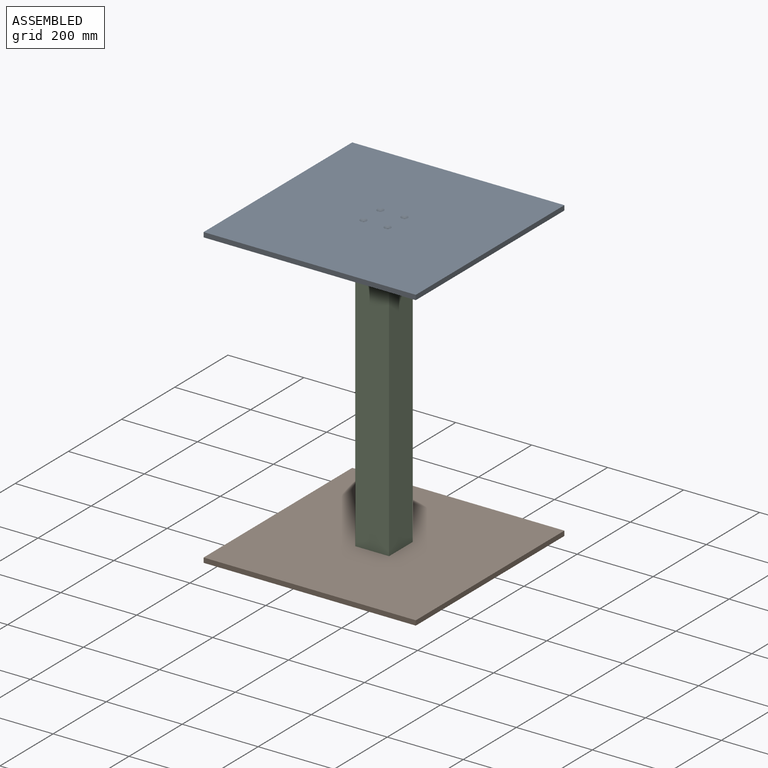
[diagram: assembled view]
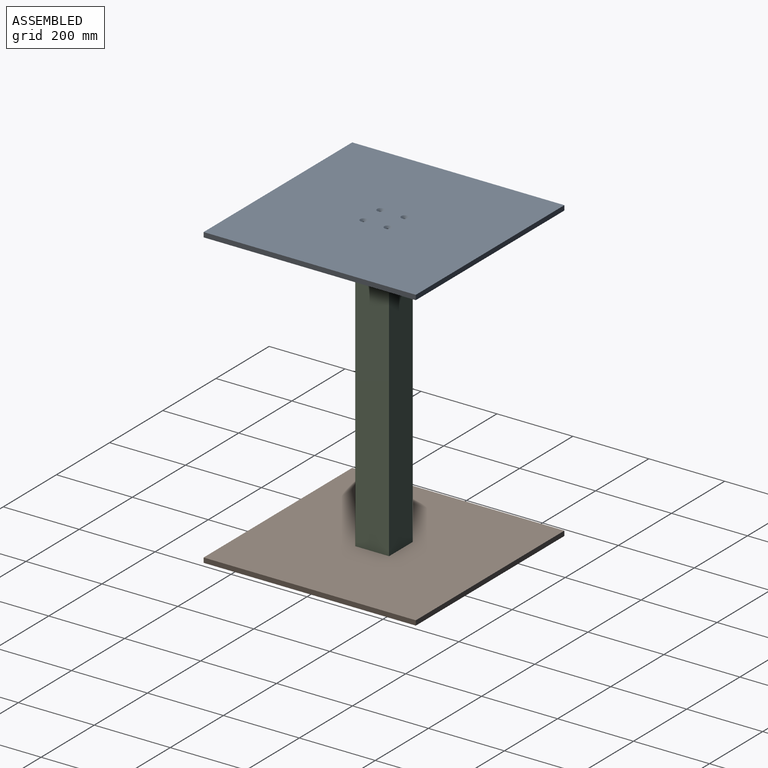
[diagram: assembled view, second angle]
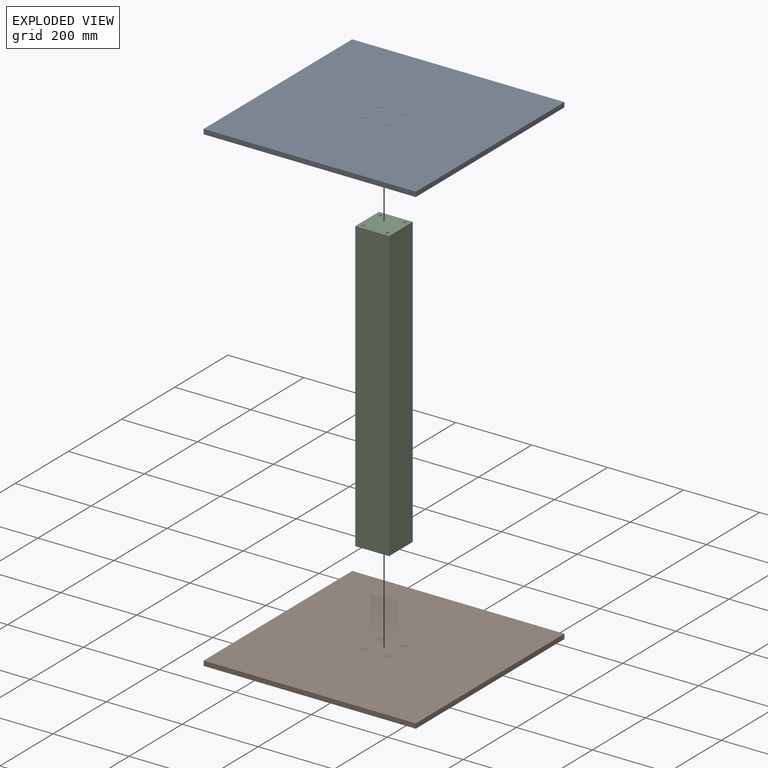
[diagram: exploded view]
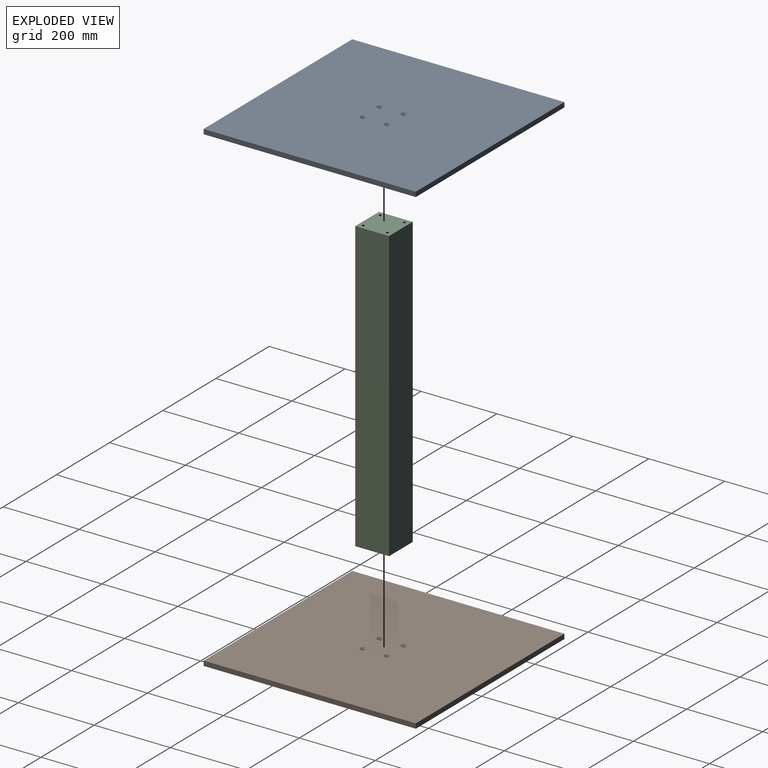
[diagram: exploded view, second angle]
ASSEMBLY  parts=3 mates=2
PART A: 14 faces, bbox 558.8x558.8x12.7 mm
  f0: plane 558.8x12.7mm, normal (-1,0,0), area 7096.8mm2, adj f1,f6,f8,f9
  f1: plane 558.8x12.7mm, normal (0,-1,0), area 7096.8mm2, adj f0,f2,f8,f9
  f2: plane 558.8x12.7mm, normal (1,0,0), area 7096.8mm2, adj f1,f6,f8,f9
  f3: cylinder r=3.81mm len=7.62mm, axis (0,0,-1), area 182.4mm2, adj f9,f11
  f4: cylinder r=3.81mm len=7.62mm, axis (0,0,-1), area 182.4mm2, adj f9,f10
  f5: cylinder r=3.81mm len=7.62mm, axis (0,0,-1), area 182.4mm2, adj f9,f12
  f6: plane 558.8x12.7mm, normal (0,1,0), area 7096.8mm2, adj f0,f2,f8,f9
  f7: cylinder r=3.81mm len=7.62mm, axis (0,0,-1), area 182.4mm2, adj f9,f13
  f8: plane 558.8x558.8mm, normal (0,0,1), area 311264.3mm2, adj f0,f1,f2,f6,f10,f11,f12,f13
  f9: plane 558.8x558.8mm, normal (0,0,-1), area 312075mm2, adj f0,f1,f2,f3,f4,f5,f6,f7
  f10: cone r=3.81mm half-angle=45deg, axis (0,0,1), area 286.6mm2, adj f4,f8
  f11: cone r=3.81mm half-angle=45deg, axis (0,0,1), area 286.6mm2, adj f3,f8
  f12: cone r=8.89mm half-angle=45deg, axis (0,0,1), area 286.6mm2, adj f5,f8
  f13: cone r=8.89mm half-angle=45deg, axis (0,0,1), area 286.6mm2, adj f7,f8
PART B: same geometry as A
PART C: 10 faces, bbox 88.9x88.9x762 mm
  f0: plane 762x88.9mm, normal (-1,0,0), area 67741.8mm2, adj f1,f4,f8,f9
  f1: plane 762x88.9mm, normal (0,-1,0), area 67741.8mm2, adj f0,f2,f8,f9
  f2: plane 762x88.9mm, normal (1,0,0), area 67741.8mm2, adj f1,f4,f8,f9
  f3: cylinder r=3.81mm len=762mm, axis (0,0,1), area 18241.5mm2, adj f8,f9
  f4: plane 762x88.9mm, normal (0,1,0), area 67741.8mm2, adj f0,f2,f8,f9
  f5: cylinder r=3.81mm len=762mm, axis (0,0,1), area 18241.5mm2, adj f8,f9
  f6: cylinder r=3.81mm len=762mm, axis (0,0,1), area 18241.5mm2, adj f8,f9
  f7: cylinder r=3.81mm len=762mm, axis (0,0,1), area 18241.5mm2, adj f8,f9
  f8: plane 88.9x88.9mm, normal (0,0,-1), area 7720.8mm2, adj f0,f1,f2,f3,f4,f5,f6,f7
  f9: plane 88.9x88.9mm, normal (0,0,1), area 7720.8mm2, adj f0,f1,f2,f3,f4,f5,f6,f7
PLACE A t=(-32.69,120.11,202.13)mm
PLACE B t=(-32.69,120.11,-572.57)mm
PLACE C t=(-32.69,120.11,202.13)mm
MATE fastened C.f9 <-> A.f9  axis (0,0,1) through (-32.69,120.11,202.13)mm
MATE fastened B.f8 <-> C.f8  axis (0,0,1) through (-32.69,120.11,-559.87)mm
